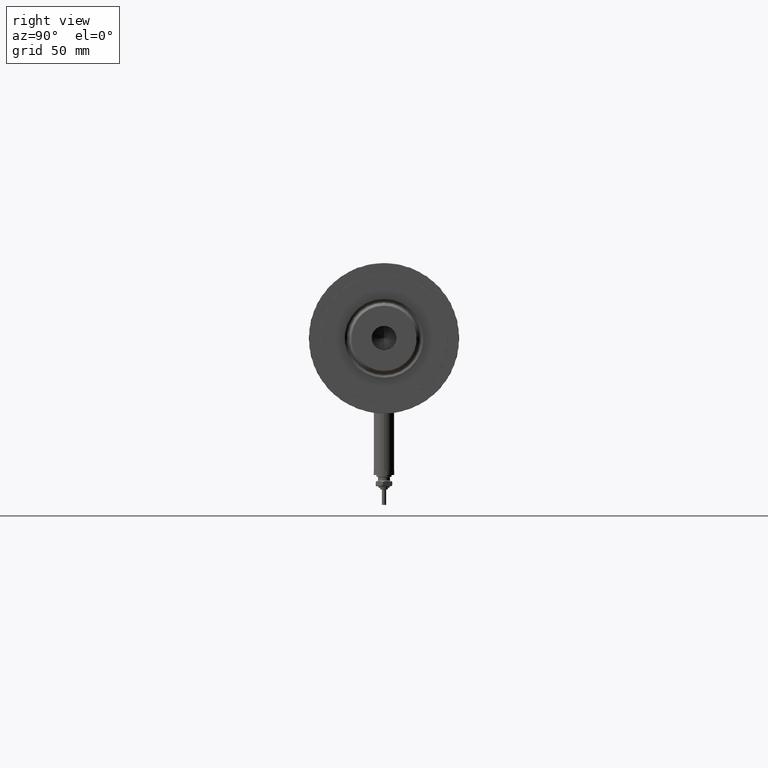
[diagram: clean part render]
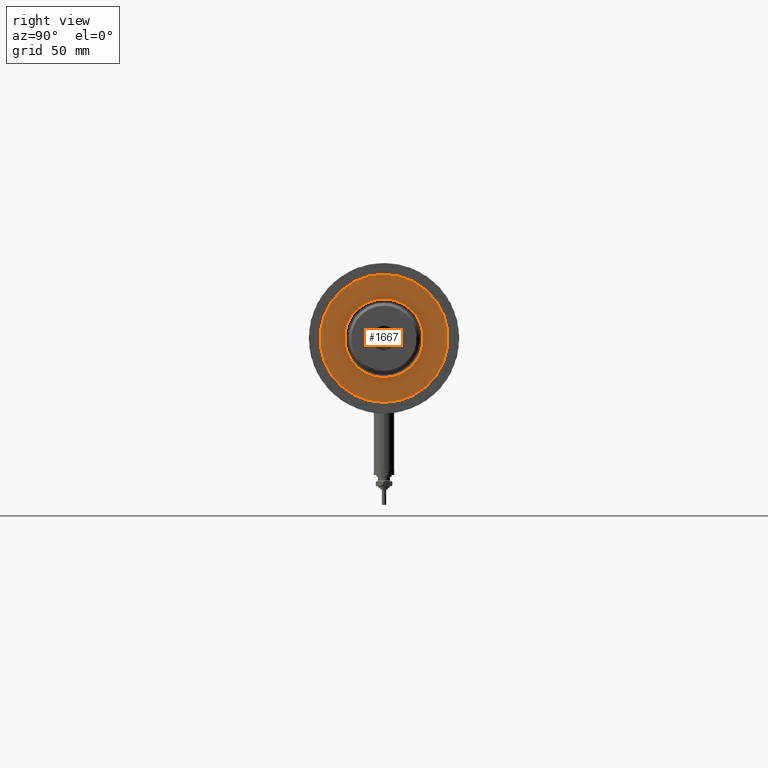
[diagram: same view with one face highlighted and labeled with its STEP entity id]
A machine part, right view. The second image highlights one B-rep face of the part: STEP entity #1667.
In plain terms, the highlighted planar face has unit normal (1, 0, -0).
Its self-contained STEP definition (entity closure, byte-faithful):
#116 = DIRECTION ( 'NONE',  ( 0.000000000000000000, 0.000000000000000000, 1.000000000000000000 ) ) ;
#173 = CIRCLE ( 'NONE', #3553, 37.50000000000000711 ) ;
#182 = VERTEX_POINT ( 'NONE', #4973 ) ;
#222 = AXIS2_PLACEMENT_3D ( 'NONE', #4540, #393, #3621 ) ;
#254 = CARTESIAN_POINT ( 'NONE',  ( 37.50000000000000711, 4.592425496802575156E-15, 59.89999999999999147 ) ) ;
#393 = DIRECTION ( 'NONE',  ( 0.000000000000000000, 0.000000000000000000, 1.000000000000000000 ) ) ;
#632 = EDGE_CURVE ( 'NONE', #3214, #182, #2838, .T. ) ;
#776 = ORIENTED_EDGE ( 'NONE', *, *, #5054, .T. ) ;
#1112 = DIRECTION ( 'NONE',  ( -0.000000000000000000, -0.000000000000000000, -1.000000000000000000 ) ) ;
#1667 = ADVANCED_FACE ( 'NONE', ( #4255, #4600 ), #6009, .T. ) ;
#1683 = CARTESIAN_POINT ( 'NONE',  ( 0.000000000000000000, 0.000000000000000000, 59.89999999999999147 ) ) ;
#1718 = AXIS2_PLACEMENT_3D ( 'NONE', #1808, #3198, #3680 ) ;
#1808 = CARTESIAN_POINT ( 'NONE',  ( 0.000000000000000000, 0.000000000000000000, 59.89999999999999147 ) ) ;
#1909 = AXIS2_PLACEMENT_3D ( 'NONE', #1683, #1112, #5713 ) ;
#2639 = DIRECTION ( 'NONE',  ( 0.000000000000000000, 0.000000000000000000, 1.000000000000000000 ) ) ;
#2801 = CARTESIAN_POINT ( 'NONE',  ( -23.05000000000002913, 2.822810872034651791E-15, 59.89999999999999147 ) ) ;
#2838 = CIRCLE ( 'NONE', #222, 37.50000000000000711 ) ;
#2969 = CIRCLE ( 'NONE', #1909, 23.05000000000002913 ) ;
#3095 = DIRECTION ( 'NONE',  ( 1.000000000000000000, 0.000000000000000000, 0.000000000000000000 ) ) ;
#3174 = VERTEX_POINT ( 'NONE', #2801 ) ;
#3198 = DIRECTION ( 'NONE',  ( -0.000000000000000000, -0.000000000000000000, -1.000000000000000000 ) ) ;
#3214 = VERTEX_POINT ( 'NONE', #254 ) ;
#3553 = AXIS2_PLACEMENT_3D ( 'NONE', #4901, #2639, #3095 ) ;
#3621 = DIRECTION ( 'NONE',  ( 1.000000000000000000, 0.000000000000000000, 0.000000000000000000 ) ) ;
#3647 = EDGE_LOOP ( 'NONE', ( #776, #5962 ) ) ;
#3680 = DIRECTION ( 'NONE',  ( 1.000000000000000000, 0.000000000000000000, 0.000000000000000000 ) ) ;
#3687 = DIRECTION ( 'NONE',  ( 1.000000000000000000, 0.000000000000000000, -0.000000000000000000 ) ) ;
#3802 = ORIENTED_EDGE ( 'NONE', *, *, #4419, .T. ) ;
#4022 = AXIS2_PLACEMENT_3D ( 'NONE', #4138, #116, #3687 ) ;
#4138 = CARTESIAN_POINT ( 'NONE',  ( 0.000000000000000000, 0.000000000000000000, 59.89999999999999147 ) ) ;
#4163 = EDGE_CURVE ( 'NONE', #5186, #3174, #5587, .T. ) ;
#4255 = FACE_BOUND ( 'NONE', #5551, .T. ) ;
#4419 = EDGE_CURVE ( 'NONE', #3174, #5186, #2969, .T. ) ;
#4540 = CARTESIAN_POINT ( 'NONE',  ( 0.000000000000000000, 0.000000000000000000, 59.89999999999999147 ) ) ;
#4600 = FACE_OUTER_BOUND ( 'NONE', #3647, .T. ) ;
#4827 = CARTESIAN_POINT ( 'NONE',  ( 23.05000000000002913, 0.000000000000000000, 59.89999999999999147 ) ) ;
#4901 = CARTESIAN_POINT ( 'NONE',  ( 0.000000000000000000, 0.000000000000000000, 59.89999999999999147 ) ) ;
#4973 = CARTESIAN_POINT ( 'NONE',  ( -37.50000000000000711, 0.000000000000000000, 59.89999999999999147 ) ) ;
#5054 = EDGE_CURVE ( 'NONE', #182, #3214, #173, .T. ) ;
#5186 = VERTEX_POINT ( 'NONE', #4827 ) ;
#5551 = EDGE_LOOP ( 'NONE', ( #5572, #3802 ) ) ;
#5572 = ORIENTED_EDGE ( 'NONE', *, *, #4163, .T. ) ;
#5587 = CIRCLE ( 'NONE', #1718, 23.05000000000002913 ) ;
#5713 = DIRECTION ( 'NONE',  ( 1.000000000000000000, 0.000000000000000000, 0.000000000000000000 ) ) ;
#5962 = ORIENTED_EDGE ( 'NONE', *, *, #632, .T. ) ;
#6009 = PLANE ( 'NONE',  #4022 ) ;